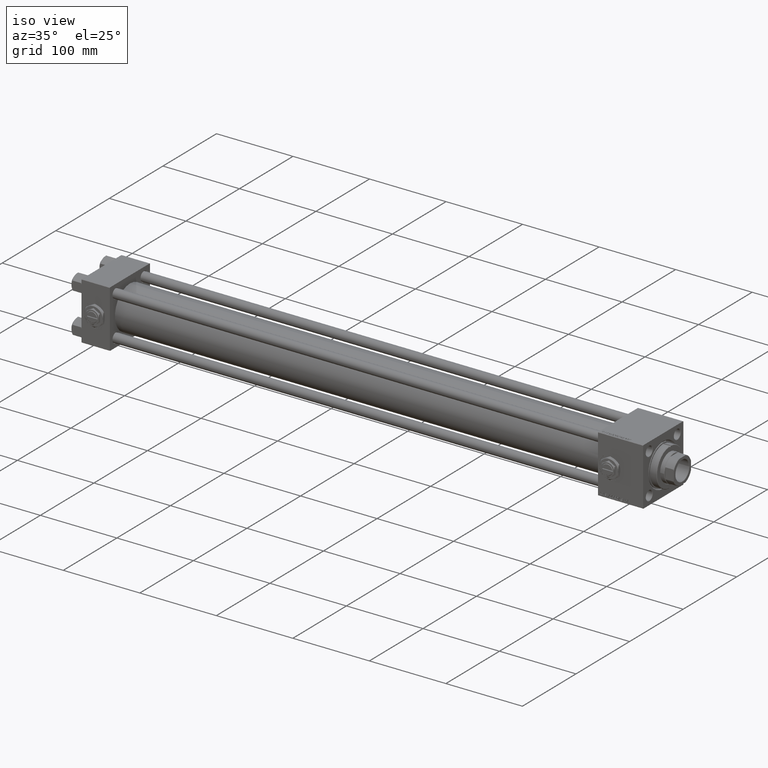
[diagram: clean part render]
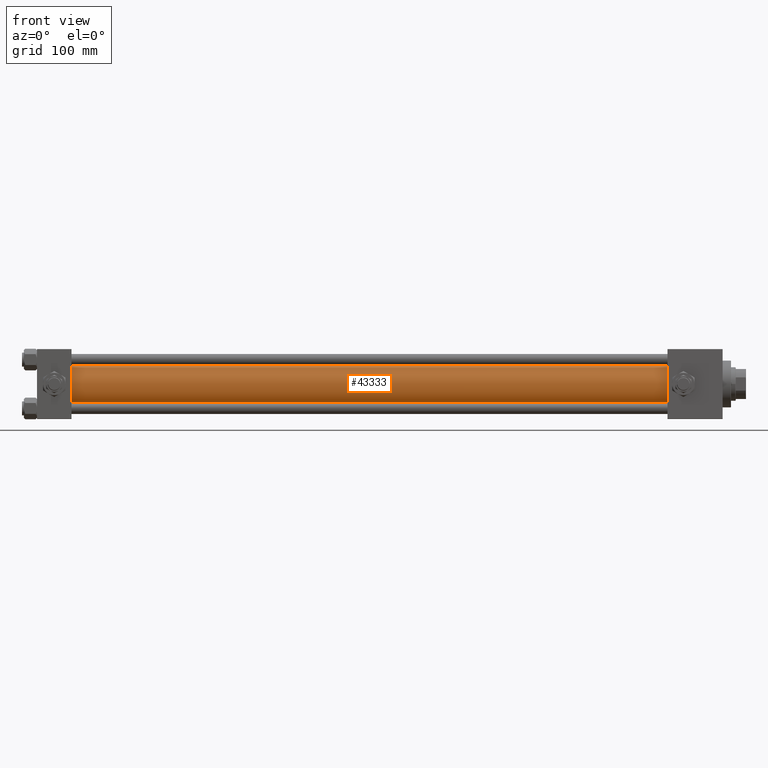
[diagram: tour spotlight — one face highlighted and labeled with its STEP entity id]
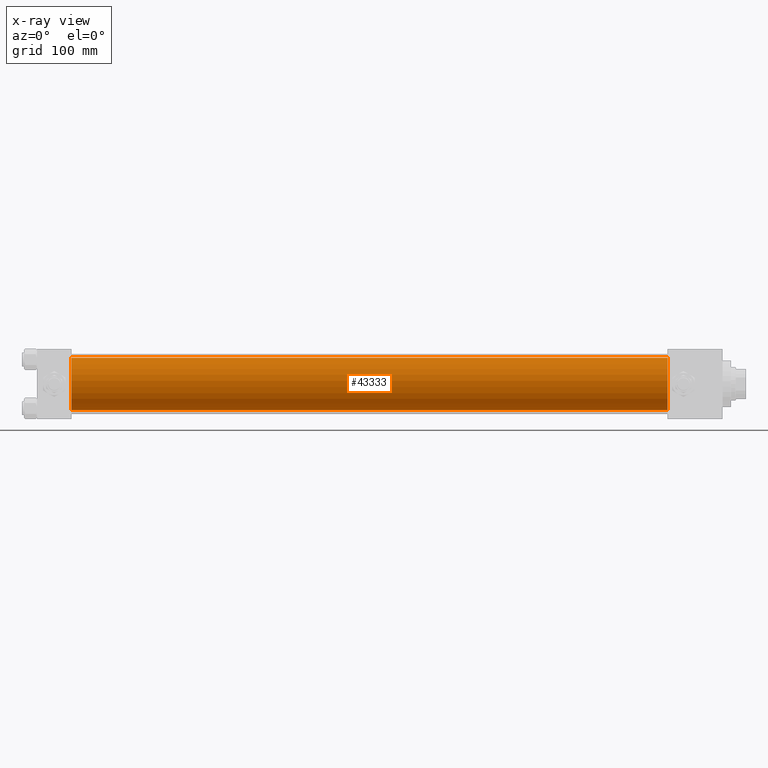
[diagram: x-ray of the same camera — body ghosted, this tour face saturated]
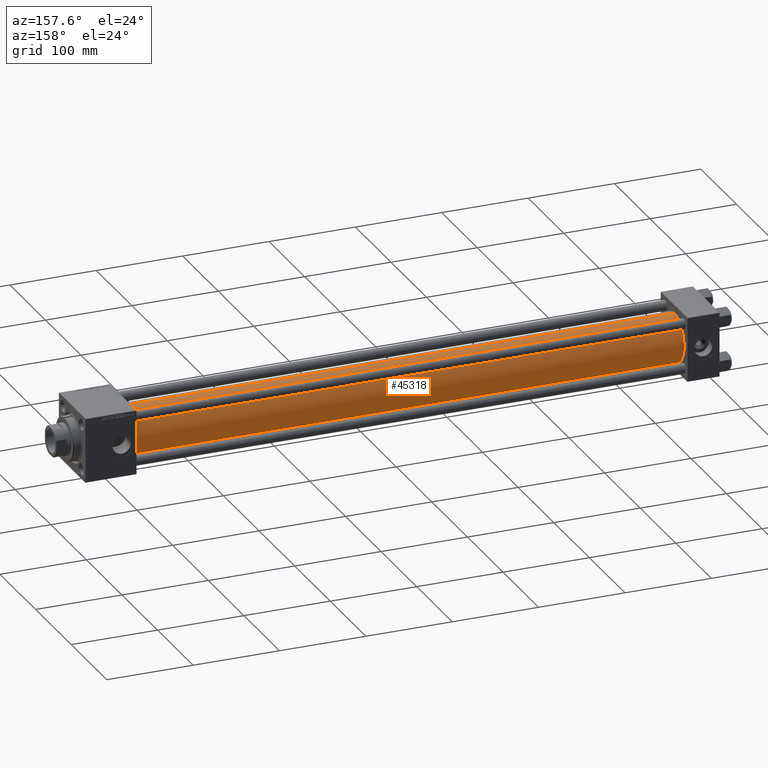
[diagram: tour spotlight — one face highlighted and labeled with its STEP entity id]
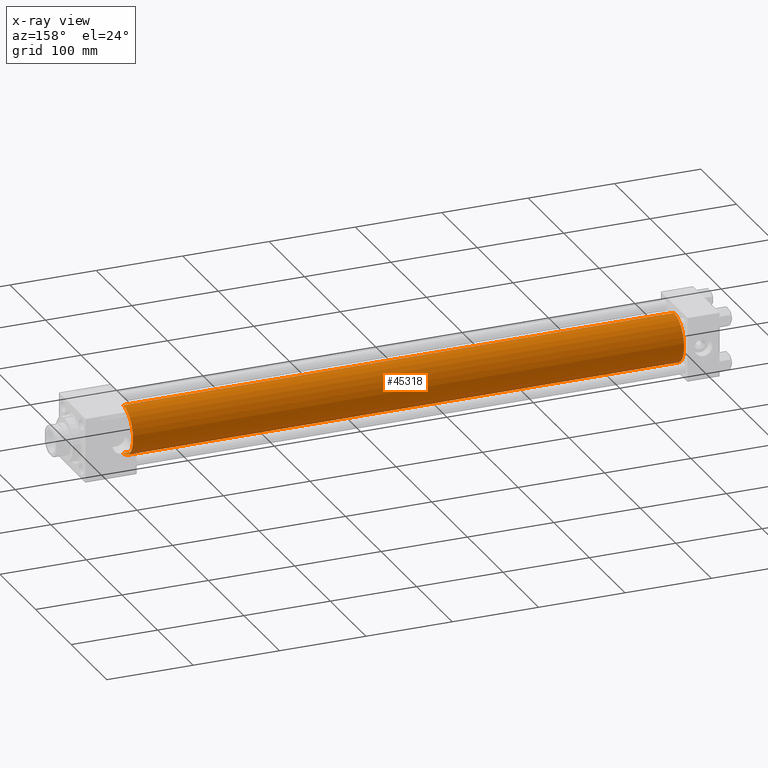
[diagram: x-ray of the same camera — body ghosted, this tour face saturated]
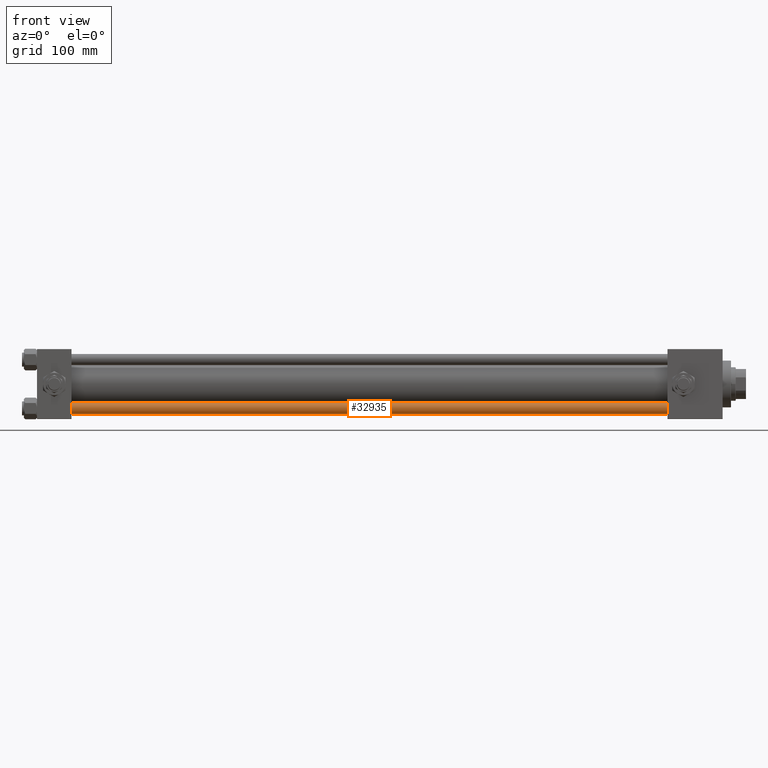
[diagram: tour spotlight — one face highlighted and labeled with its STEP entity id]
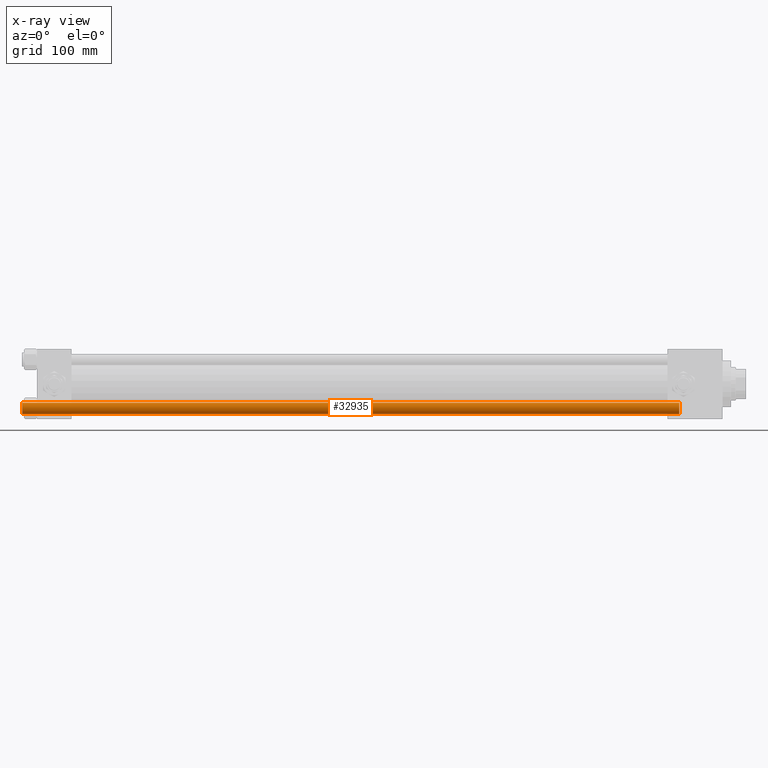
[diagram: x-ray of the same camera — body ghosted, this tour face saturated]
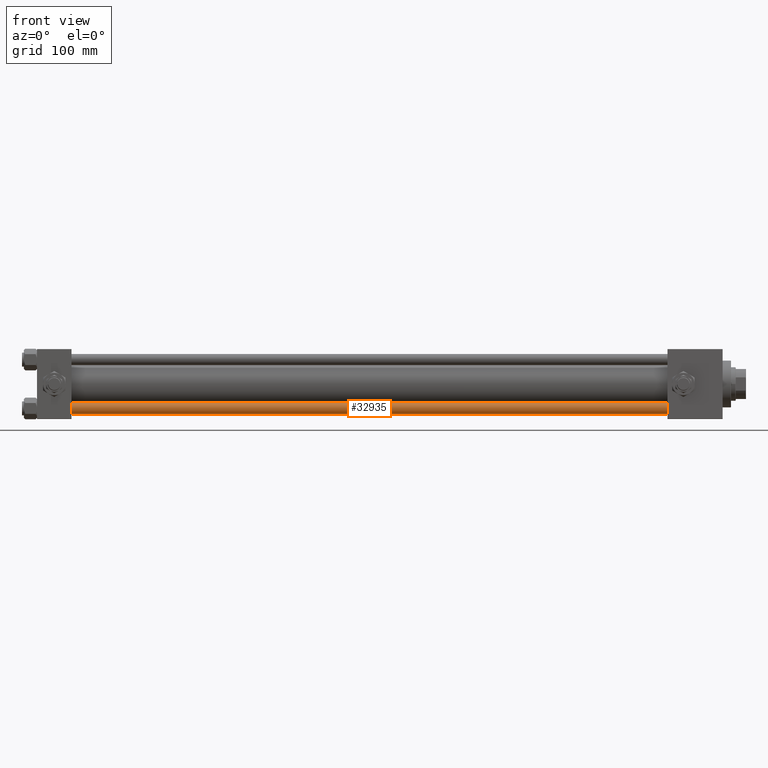
[diagram: tour spotlight — one face highlighted and labeled with its STEP entity id]
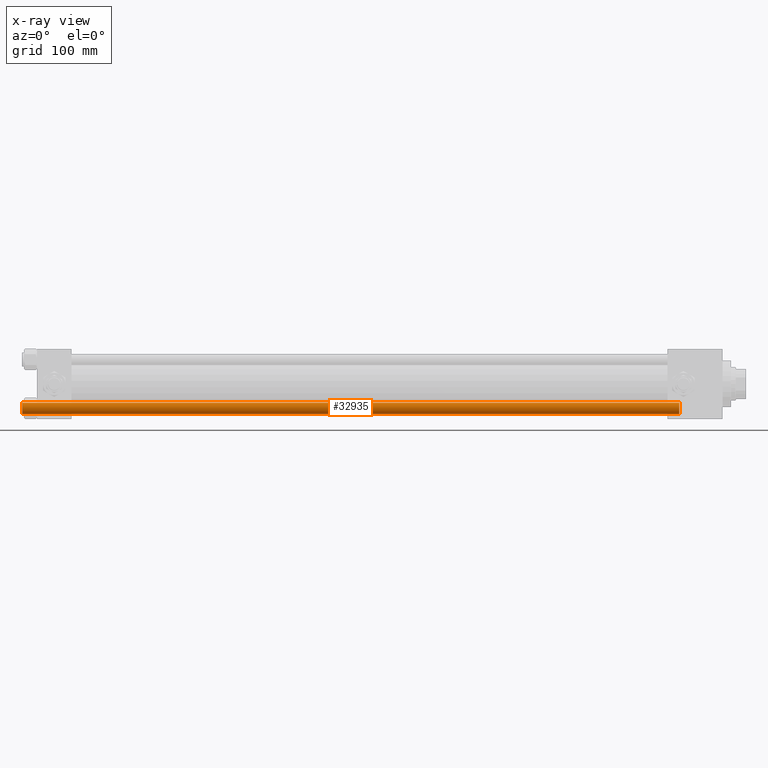
[diagram: x-ray of the same camera — body ghosted, this tour face saturated]
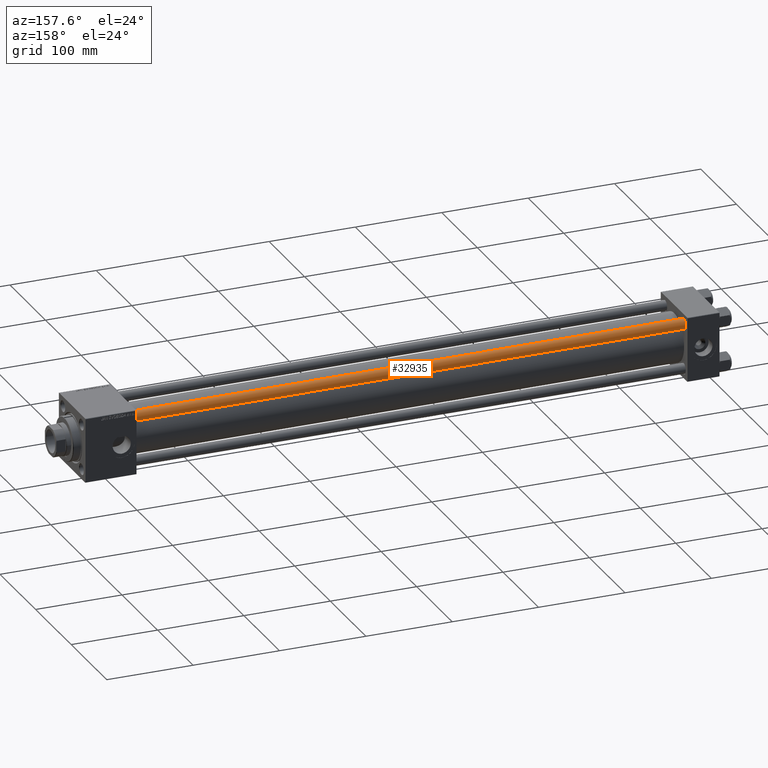
[diagram: tour spotlight — one face highlighted and labeled with its STEP entity id]
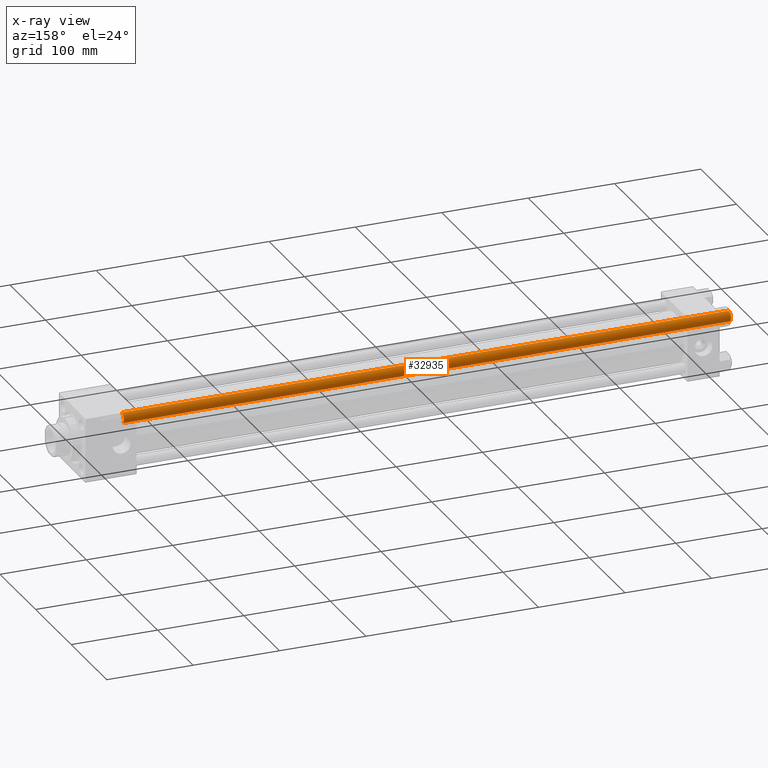
[diagram: x-ray of the same camera — body ghosted, this tour face saturated]
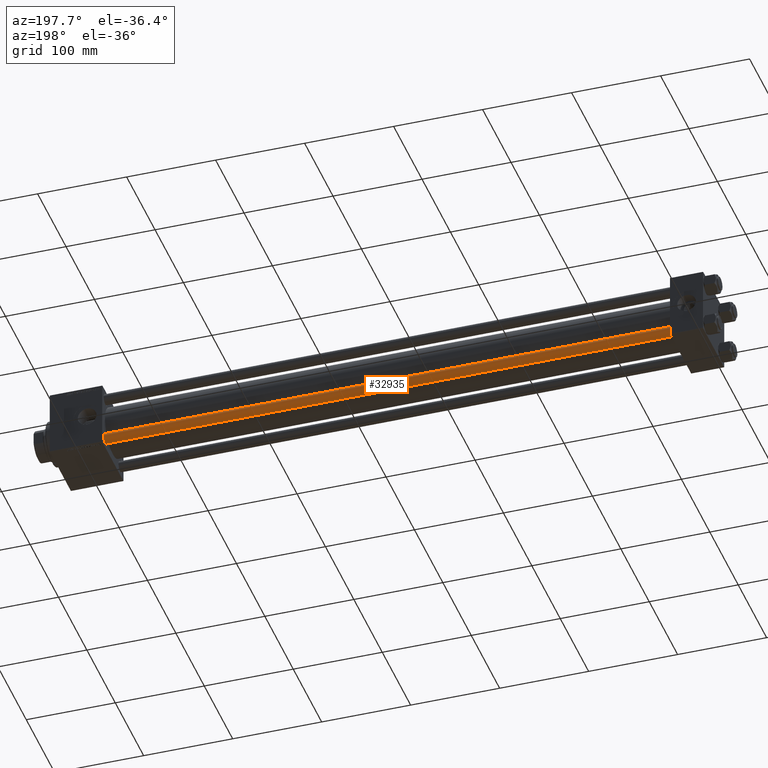
[diagram: tour spotlight — one face highlighted and labeled with its STEP entity id]
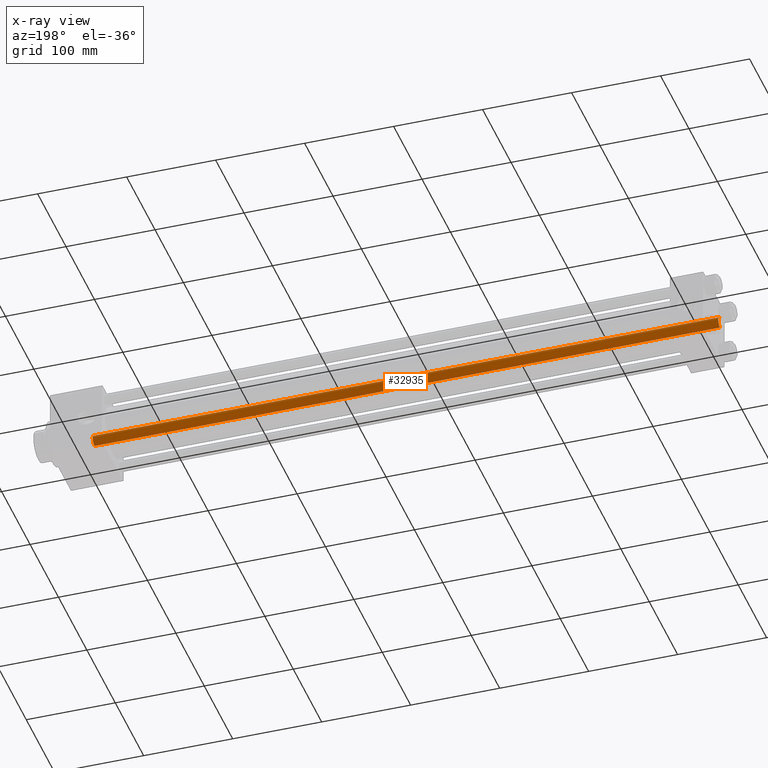
[diagram: x-ray of the same camera — body ghosted, this tour face saturated]
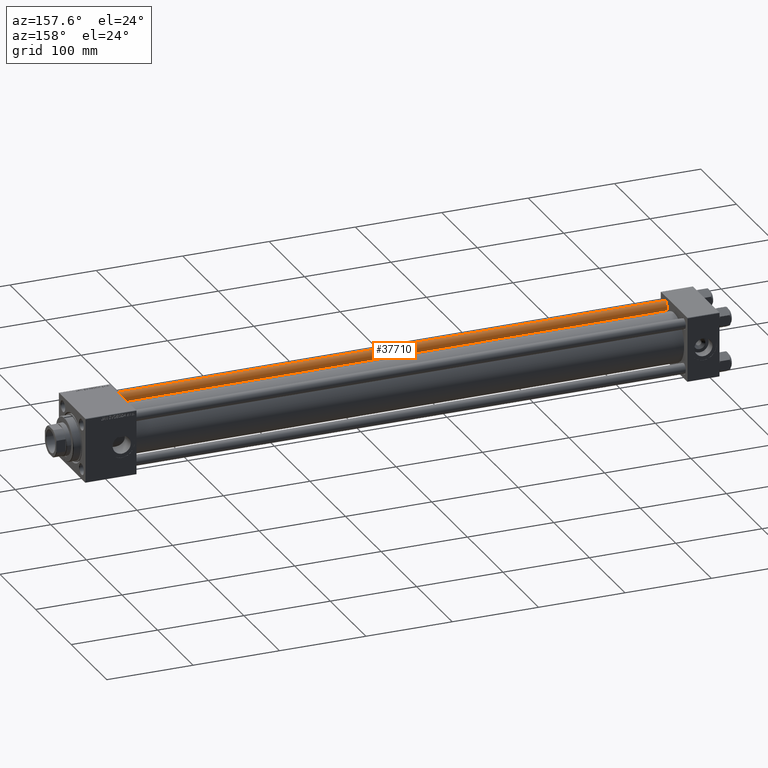
[diagram: tour spotlight — one face highlighted and labeled with its STEP entity id]
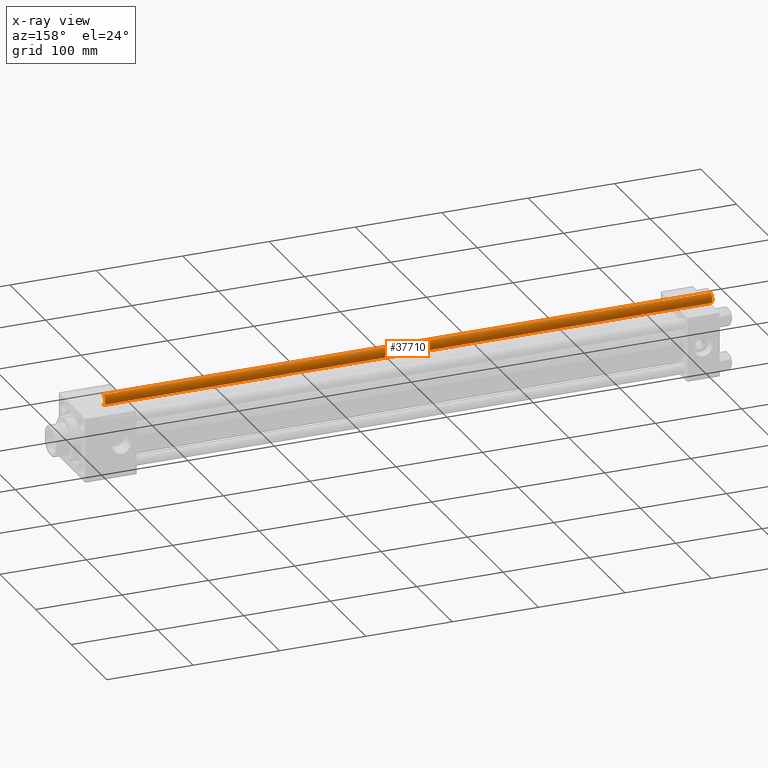
[diagram: x-ray of the same camera — body ghosted, this tour face saturated]
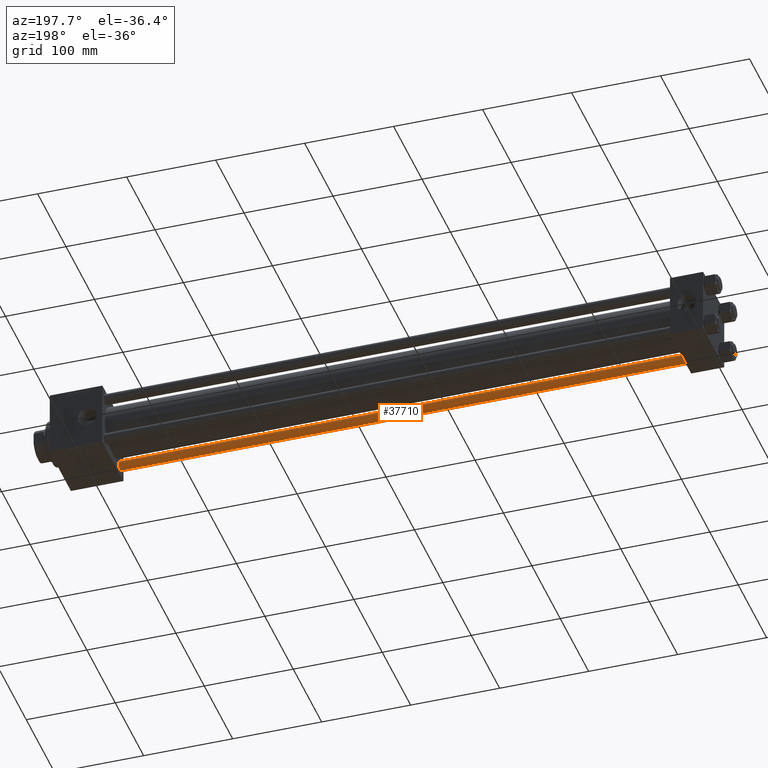
[diagram: tour spotlight — one face highlighted and labeled with its STEP entity id]
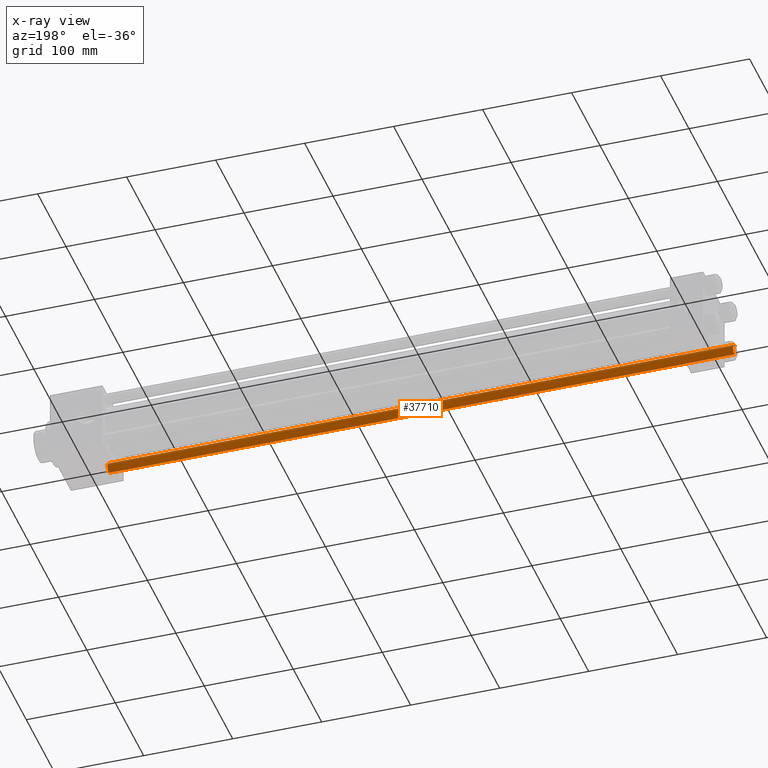
[diagram: x-ray of the same camera — body ghosted, this tour face saturated]
A machine part: a face-by-face anatomy tour. The part has 1255 B-rep faces; the first image is the clean iso view, then the 8 largest visible faces are spotlighted one at a time (largest first), each with its STEP entity span.

Face 1 — front view, entity #43333. An x-ray twin of the same camera follows (body ghosted, this face saturated) — the face is partly hidden behind the body. In plain terms, the highlighted cylindrical surface (edge-blend (fillet) strip) has radius 28 mm, axis along (-1, -0, -0).
Definition (entity closure, byte-faithful):
#49 = FACE_OUTER_BOUND ( 'NONE', #36151, .T. ) ;
#678 = VERTEX_POINT ( 'NONE', #44921 ) ;
#1684 = ORIENTED_EDGE ( 'NONE', *, *, #40015, .T. ) ;
#1927 = CARTESIAN_POINT ( 'NONE',  ( 37.00000000000003553, 8.269258236473784371E-16, -28.00000000000000000 ) ) ;
#3848 = AXIS2_PLACEMENT_3D ( 'NONE', #4518, #4265, #37146 ) ;
#4265 = DIRECTION ( 'NONE',  ( -1.000000000000000000, -0.000000000000000000, -0.000000000000000000 ) ) ;
#4518 = CARTESIAN_POINT ( 'NONE',  ( 675.0000000000000000, -2.602085213965210642E-15, 0.000000000000000000 ) ) ;
#6770 = ORIENTED_EDGE ( 'NONE', *, *, #7185, .F. ) ;
#7185 = EDGE_CURVE ( 'NONE', #678, #40507, #47597, .T. ) ;
#8121 = CARTESIAN_POINT ( 'NONE',  ( 675.0000000000000000, -2.602085213965210642E-15, 28.00000000000000000 ) ) ;
#9069 = AXIS2_PLACEMENT_3D ( 'NONE', #27326, #43496, #23347 ) ;
#9383 = EDGE_CURVE ( 'NONE', #50898, #678, #20864, .T. ) ;
#11008 = DIRECTION ( 'NONE',  ( -1.000000000000000000, -0.000000000000000000, -0.000000000000000000 ) ) ;
#11662 = EDGE_CURVE ( 'NONE', #33111, #40507, #52256, .T. ) ;
#16650 = CARTESIAN_POINT ( 'NONE',  ( 675.0000000000000000, -2.602085213965210642E-15, 0.000000000000000000 ) ) ;
#19510 = LINE ( 'NONE', #8121, #36121 ) ;
#19763 = DIRECTION ( 'NONE',  ( -1.000000000000000000, -0.000000000000000000, -0.000000000000000000 ) ) ;
#20864 = CIRCLE ( 'NONE', #31857, 28.00000000000000000 ) ;
#21195 = CARTESIAN_POINT ( 'NONE',  ( 675.0000000000000000, -2.602085213965210642E-15, 28.00000000000000000 ) ) ;
#22452 = VECTOR ( 'NONE', #11008, 1000.000000000000000 ) ;
#23014 = CARTESIAN_POINT ( 'NONE',  ( 37.00000000000003553, -2.602085213965210642E-15, 28.00000000000000000 ) ) ;
#23347 = DIRECTION ( 'NONE',  ( 0.000000000000000000, 0.000000000000000000, 1.000000000000000000 ) ) ;
#25195 = CYLINDRICAL_SURFACE ( 'NONE', #3848, 28.00000000000000000 ) ;
#27326 = CARTESIAN_POINT ( 'NONE',  ( 37.00000000000003553, -2.602085213965210642E-15, 0.000000000000000000 ) ) ;
#31857 = AXIS2_PLACEMENT_3D ( 'NONE', #16650, #40785, #38884 ) ;
#33111 = VERTEX_POINT ( 'NONE', #23014 ) ;
#33621 = ORIENTED_EDGE ( 'NONE', *, *, #11662, .T. ) ;
#35152 = CARTESIAN_POINT ( 'NONE',  ( 675.0000000000000000, 8.269258236473784371E-16, -28.00000000000000000 ) ) ;
#36121 = VECTOR ( 'NONE', #19763, 1000.000000000000000 ) ;
#36151 = EDGE_LOOP ( 'NONE', ( #6770, #52405, #1684, #33621 ) ) ;
#37146 = DIRECTION ( 'NONE',  ( 0.000000000000000000, 0.000000000000000000, 1.000000000000000000 ) ) ;
#38884 = DIRECTION ( 'NONE',  ( 0.000000000000000000, 0.000000000000000000, -1.000000000000000000 ) ) ;
#40015 = EDGE_CURVE ( 'NONE', #50898, #33111, #19510, .T. ) ;
#40507 = VERTEX_POINT ( 'NONE', #1927 ) ;
#40785 = DIRECTION ( 'NONE',  ( 1.000000000000000000, 0.000000000000000000, 0.000000000000000000 ) ) ;
#43333 = ADVANCED_FACE ( 'NONE', ( #49 ), #25195, .T. ) ;
#43496 = DIRECTION ( 'NONE',  ( 1.000000000000000000, -0.000000000000000000, 0.000000000000000000 ) ) ;
#44921 = CARTESIAN_POINT ( 'NONE',  ( 675.0000000000000000, 8.269258236473784371E-16, -28.00000000000000000 ) ) ;
#47597 = LINE ( 'NONE', #35152, #22452 ) ;
#50898 = VERTEX_POINT ( 'NONE', #21195 ) ;
#52256 = CIRCLE ( 'NONE', #9069, 28.00000000000000000 ) ;
#52405 = ORIENTED_EDGE ( 'NONE', *, *, #9383, .F. ) ;

Face 2 — auxiliary view, entity #45318. An x-ray twin of the same camera follows (body ghosted, this face saturated) — the face is partly hidden behind the body. In plain terms, the highlighted cylindrical surface (edge-blend (fillet) strip) has radius 28 mm, axis along (-1, -0, -0).
Definition (entity closure, byte-faithful):
#631 = ORIENTED_EDGE ( 'NONE', *, *, #21662, .T. ) ;
#678 = VERTEX_POINT ( 'NONE', #44921 ) ;
#1927 = CARTESIAN_POINT ( 'NONE',  ( 37.00000000000003553, 8.269258236473784371E-16, -28.00000000000000000 ) ) ;
#7185 = EDGE_CURVE ( 'NONE', #678, #40507, #47597, .T. ) ;
#7305 = CARTESIAN_POINT ( 'NONE',  ( 37.00000000000003553, -2.602085213965210642E-15, 0.000000000000000000 ) ) ;
#8121 = CARTESIAN_POINT ( 'NONE',  ( 675.0000000000000000, -2.602085213965210642E-15, 28.00000000000000000 ) ) ;
#8168 = CARTESIAN_POINT ( 'NONE',  ( 675.0000000000000000, -2.602085213965210642E-15, 0.000000000000000000 ) ) ;
#10293 = CIRCLE ( 'NONE', #30626, 28.00000000000000000 ) ;
#10510 = CARTESIAN_POINT ( 'NONE',  ( 675.0000000000000000, -2.602085213965210642E-15, 0.000000000000000000 ) ) ;
#11008 = DIRECTION ( 'NONE',  ( -1.000000000000000000, -0.000000000000000000, -0.000000000000000000 ) ) ;
#11406 = ORIENTED_EDGE ( 'NONE', *, *, #40015, .F. ) ;
#12925 = DIRECTION ( 'NONE',  ( 0.000000000000000000, 0.000000000000000000, -1.000000000000000000 ) ) ;
#19485 = DIRECTION ( 'NONE',  ( 1.000000000000000000, -0.000000000000000000, 0.000000000000000000 ) ) ;
#19510 = LINE ( 'NONE', #8121, #36121 ) ;
#19763 = DIRECTION ( 'NONE',  ( -1.000000000000000000, -0.000000000000000000, -0.000000000000000000 ) ) ;
#21195 = CARTESIAN_POINT ( 'NONE',  ( 675.0000000000000000, -2.602085213965210642E-15, 28.00000000000000000 ) ) ;
#21662 = EDGE_CURVE ( 'NONE', #40507, #33111, #10293, .T. ) ;
#22452 = VECTOR ( 'NONE', #11008, 1000.000000000000000 ) ;
#23014 = CARTESIAN_POINT ( 'NONE',  ( 37.00000000000003553, -2.602085213965210642E-15, 28.00000000000000000 ) ) ;
#29459 = AXIS2_PLACEMENT_3D ( 'NONE', #8168, #36536, #12925 ) ;
#30626 = AXIS2_PLACEMENT_3D ( 'NONE', #7305, #19485, #44679 ) ;
#33111 = VERTEX_POINT ( 'NONE', #23014 ) ;
#34418 = AXIS2_PLACEMENT_3D ( 'NONE', #10510, #38127, #41842 ) ;
#35152 = CARTESIAN_POINT ( 'NONE',  ( 675.0000000000000000, 8.269258236473784371E-16, -28.00000000000000000 ) ) ;
#36121 = VECTOR ( 'NONE', #19763, 1000.000000000000000 ) ;
#36536 = DIRECTION ( 'NONE',  ( 1.000000000000000000, 0.000000000000000000, 0.000000000000000000 ) ) ;
#38127 = DIRECTION ( 'NONE',  ( -1.000000000000000000, -0.000000000000000000, -0.000000000000000000 ) ) ;
#40015 = EDGE_CURVE ( 'NONE', #50898, #33111, #19510, .T. ) ;
#40507 = VERTEX_POINT ( 'NONE', #1927 ) ;
#41842 = DIRECTION ( 'NONE',  ( 0.000000000000000000, 0.000000000000000000, 1.000000000000000000 ) ) ;
#42357 = FACE_OUTER_BOUND ( 'NONE', #48947, .T. ) ;
#44679 = DIRECTION ( 'NONE',  ( 0.000000000000000000, 0.000000000000000000, 1.000000000000000000 ) ) ;
#44921 = CARTESIAN_POINT ( 'NONE',  ( 675.0000000000000000, 8.269258236473784371E-16, -28.00000000000000000 ) ) ;
#45318 = ADVANCED_FACE ( 'NONE', ( #42357 ), #50566, .T. ) ;
#47597 = LINE ( 'NONE', #35152, #22452 ) ;
#48061 = CIRCLE ( 'NONE', #29459, 28.00000000000000000 ) ;
#48947 = EDGE_LOOP ( 'NONE', ( #49527, #49221, #631, #11406 ) ) ;
#49221 = ORIENTED_EDGE ( 'NONE', *, *, #7185, .T. ) ;
#49527 = ORIENTED_EDGE ( 'NONE', *, *, #52154, .F. ) ;
#50566 = CYLINDRICAL_SURFACE ( 'NONE', #34418, 28.00000000000000000 ) ;
#50898 = VERTEX_POINT ( 'NONE', #21195 ) ;
#52154 = EDGE_CURVE ( 'NONE', #678, #50898, #48061, .T. ) ;

Face 3 — front view, entity #32935. An x-ray twin of the same camera follows (body ghosted, this face saturated) — the face is partly hidden behind the body. In plain terms, the highlighted cylindrical surface (edge-blend (fillet) strip) has radius 6 mm, axis along (1, 0, -0).
Definition (entity closure, byte-faithful):
#445 = AXIS2_PLACEMENT_3D ( 'NONE', #8225, #49053, #24384 ) ;
#544 = FACE_OUTER_BOUND ( 'NONE', #50151, .T. ) ;
#758 = EDGE_CURVE ( 'NONE', #23233, #26181, #7135, .T. ) ;
#1857 = CARTESIAN_POINT ( 'NONE',  ( -6.000000000000000888, 0.000000000000000000, 704.0000000000000000 ) ) ;
#3129 = AXIS2_PLACEMENT_3D ( 'NONE', #45133, #49118, #8548 ) ;
#5751 = EDGE_CURVE ( 'NONE', #47365, #23233, #28094, .T. ) ;
#6604 = LINE ( 'NONE', #1857, #32880 ) ;
#7135 = CIRCLE ( 'NONE', #26579, 6.000000000000000888 ) ;
#8225 = CARTESIAN_POINT ( 'NONE',  ( 0.000000000000000000, 0.000000000000000000, 704.0000000000000000 ) ) ;
#8415 = CARTESIAN_POINT ( 'NONE',  ( -6.000000000000000888, 0.000000000000000000, 703.5000000000000000 ) ) ;
#8548 = DIRECTION ( 'NONE',  ( 1.000000000000000000, 0.000000000000000000, 0.000000000000000000 ) ) ;
#8739 = CYLINDRICAL_SURFACE ( 'NONE', #445, 6.000000000000000888 ) ;
#9895 = CARTESIAN_POINT ( 'NONE',  ( 0.000000000000000000, 0.000000000000000000, 0.4999999999998339106 ) ) ;
#10667 = DIRECTION ( 'NONE',  ( 1.000000000000000000, 0.000000000000000000, 0.000000000000000000 ) ) ;
#11460 = EDGE_CURVE ( 'NONE', #15531, #47365, #43772, .T. ) ;
#11759 = CARTESIAN_POINT ( 'NONE',  ( 6.000000000000000888, 7.347880794884120722E-16, 703.5000000000000000 ) ) ;
#13815 = EDGE_CURVE ( 'NONE', #15531, #26181, #6604, .T. ) ;
#15531 = VERTEX_POINT ( 'NONE', #8415 ) ;
#16532 = ORIENTED_EDGE ( 'NONE', *, *, #5751, .T. ) ;
#21339 = ORIENTED_EDGE ( 'NONE', *, *, #758, .T. ) ;
#23233 = VERTEX_POINT ( 'NONE', #47168 ) ;
#24384 = DIRECTION ( 'NONE',  ( -1.000000000000000000, 0.000000000000000000, 0.000000000000000000 ) ) ;
#26181 = VERTEX_POINT ( 'NONE', #49496 ) ;
#26579 = AXIS2_PLACEMENT_3D ( 'NONE', #9895, #50711, #10667 ) ;
#28094 = LINE ( 'NONE', #48768, #35106 ) ;
#28628 = DIRECTION ( 'NONE',  ( -0.000000000000000000, -0.000000000000000000, -1.000000000000000000 ) ) ;
#32880 = VECTOR ( 'NONE', #33955, 1000.000000000000000 ) ;
#32935 = ADVANCED_FACE ( 'NONE', ( #544 ), #8739, .T. ) ;
#33955 = DIRECTION ( 'NONE',  ( -0.000000000000000000, -0.000000000000000000, -1.000000000000000000 ) ) ;
#35106 = VECTOR ( 'NONE', #28628, 1000.000000000000000 ) ;
#38765 = ORIENTED_EDGE ( 'NONE', *, *, #11460, .T. ) ;
#43671 = ORIENTED_EDGE ( 'NONE', *, *, #13815, .F. ) ;
#43772 = CIRCLE ( 'NONE', #3129, 6.000000000000000888 ) ;
#45133 = CARTESIAN_POINT ( 'NONE',  ( 0.000000000000000000, 0.000000000000000000, 703.5000000000000000 ) ) ;
#47168 = CARTESIAN_POINT ( 'NONE',  ( 6.000000000000000888, 7.347880794884120722E-16, 0.4999999999998339106 ) ) ;
#47365 = VERTEX_POINT ( 'NONE', #11759 ) ;
#48768 = CARTESIAN_POINT ( 'NONE',  ( 6.000000000000000888, 7.347880794884120722E-16, 704.0000000000000000 ) ) ;
#49053 = DIRECTION ( 'NONE',  ( -0.000000000000000000, -0.000000000000000000, -1.000000000000000000 ) ) ;
#49118 = DIRECTION ( 'NONE',  ( 0.000000000000000000, 0.000000000000000000, -1.000000000000000000 ) ) ;
#49496 = CARTESIAN_POINT ( 'NONE',  ( -6.000000000000000888, 0.000000000000000000, 0.4999999999998339106 ) ) ;
#50151 = EDGE_LOOP ( 'NONE', ( #38765, #16532, #21339, #43671 ) ) ;
#50711 = DIRECTION ( 'NONE',  ( -0.000000000000000000, -0.000000000000000000, 1.000000000000000000 ) ) ;

Face 4 — front view, entity #32935. An x-ray twin of the same camera follows (body ghosted, this face saturated) — the face is partly hidden behind the body. In plain terms, the highlighted cylindrical surface (edge-blend (fillet) strip) has radius 6 mm, axis along (-1, -0, -0).
Definition (entity closure, byte-faithful):
#445 = AXIS2_PLACEMENT_3D ( 'NONE', #8225, #49053, #24384 ) ;
#544 = FACE_OUTER_BOUND ( 'NONE', #50151, .T. ) ;
#758 = EDGE_CURVE ( 'NONE', #23233, #26181, #7135, .T. ) ;
#1857 = CARTESIAN_POINT ( 'NONE',  ( -6.000000000000000888, 0.000000000000000000, 704.0000000000000000 ) ) ;
#3129 = AXIS2_PLACEMENT_3D ( 'NONE', #45133, #49118, #8548 ) ;
#5751 = EDGE_CURVE ( 'NONE', #47365, #23233, #28094, .T. ) ;
#6604 = LINE ( 'NONE', #1857, #32880 ) ;
#7135 = CIRCLE ( 'NONE', #26579, 6.000000000000000888 ) ;
#8225 = CARTESIAN_POINT ( 'NONE',  ( 0.000000000000000000, 0.000000000000000000, 704.0000000000000000 ) ) ;
#8415 = CARTESIAN_POINT ( 'NONE',  ( -6.000000000000000888, 0.000000000000000000, 703.5000000000000000 ) ) ;
#8548 = DIRECTION ( 'NONE',  ( 1.000000000000000000, 0.000000000000000000, 0.000000000000000000 ) ) ;
#8739 = CYLINDRICAL_SURFACE ( 'NONE', #445, 6.000000000000000888 ) ;
#9895 = CARTESIAN_POINT ( 'NONE',  ( 0.000000000000000000, 0.000000000000000000, 0.4999999999998339106 ) ) ;
#10667 = DIRECTION ( 'NONE',  ( 1.000000000000000000, 0.000000000000000000, 0.000000000000000000 ) ) ;
#11460 = EDGE_CURVE ( 'NONE', #15531, #47365, #43772, .T. ) ;
#11759 = CARTESIAN_POINT ( 'NONE',  ( 6.000000000000000888, 7.347880794884120722E-16, 703.5000000000000000 ) ) ;
#13815 = EDGE_CURVE ( 'NONE', #15531, #26181, #6604, .T. ) ;
#15531 = VERTEX_POINT ( 'NONE', #8415 ) ;
#16532 = ORIENTED_EDGE ( 'NONE', *, *, #5751, .T. ) ;
#21339 = ORIENTED_EDGE ( 'NONE', *, *, #758, .T. ) ;
#23233 = VERTEX_POINT ( 'NONE', #47168 ) ;
#24384 = DIRECTION ( 'NONE',  ( -1.000000000000000000, 0.000000000000000000, 0.000000000000000000 ) ) ;
#26181 = VERTEX_POINT ( 'NONE', #49496 ) ;
#26579 = AXIS2_PLACEMENT_3D ( 'NONE', #9895, #50711, #10667 ) ;
#28094 = LINE ( 'NONE', #48768, #35106 ) ;
#28628 = DIRECTION ( 'NONE',  ( -0.000000000000000000, -0.000000000000000000, -1.000000000000000000 ) ) ;
#32880 = VECTOR ( 'NONE', #33955, 1000.000000000000000 ) ;
#32935 = ADVANCED_FACE ( 'NONE', ( #544 ), #8739, .T. ) ;
#33955 = DIRECTION ( 'NONE',  ( -0.000000000000000000, -0.000000000000000000, -1.000000000000000000 ) ) ;
#35106 = VECTOR ( 'NONE', #28628, 1000.000000000000000 ) ;
#38765 = ORIENTED_EDGE ( 'NONE', *, *, #11460, .T. ) ;
#43671 = ORIENTED_EDGE ( 'NONE', *, *, #13815, .F. ) ;
#43772 = CIRCLE ( 'NONE', #3129, 6.000000000000000888 ) ;
#45133 = CARTESIAN_POINT ( 'NONE',  ( 0.000000000000000000, 0.000000000000000000, 703.5000000000000000 ) ) ;
#47168 = CARTESIAN_POINT ( 'NONE',  ( 6.000000000000000888, 7.347880794884120722E-16, 0.4999999999998339106 ) ) ;
#47365 = VERTEX_POINT ( 'NONE', #11759 ) ;
#48768 = CARTESIAN_POINT ( 'NONE',  ( 6.000000000000000888, 7.347880794884120722E-16, 704.0000000000000000 ) ) ;
#49053 = DIRECTION ( 'NONE',  ( -0.000000000000000000, -0.000000000000000000, -1.000000000000000000 ) ) ;
#49118 = DIRECTION ( 'NONE',  ( 0.000000000000000000, 0.000000000000000000, -1.000000000000000000 ) ) ;
#49496 = CARTESIAN_POINT ( 'NONE',  ( -6.000000000000000888, 0.000000000000000000, 0.4999999999998339106 ) ) ;
#50151 = EDGE_LOOP ( 'NONE', ( #38765, #16532, #21339, #43671 ) ) ;
#50711 = DIRECTION ( 'NONE',  ( -0.000000000000000000, -0.000000000000000000, 1.000000000000000000 ) ) ;

Face 5 — auxiliary view, entity #32935. An x-ray twin of the same camera follows (body ghosted, this face saturated) — the face is partly hidden behind the body. In plain terms, the highlighted cylindrical surface (edge-blend (fillet) strip) has radius 6 mm, axis along (-1, 0, 0).
Definition (entity closure, byte-faithful):
#445 = AXIS2_PLACEMENT_3D ( 'NONE', #8225, #49053, #24384 ) ;
#544 = FACE_OUTER_BOUND ( 'NONE', #50151, .T. ) ;
#758 = EDGE_CURVE ( 'NONE', #23233, #26181, #7135, .T. ) ;
#1857 = CARTESIAN_POINT ( 'NONE',  ( -6.000000000000000888, 0.000000000000000000, 704.0000000000000000 ) ) ;
#3129 = AXIS2_PLACEMENT_3D ( 'NONE', #45133, #49118, #8548 ) ;
#5751 = EDGE_CURVE ( 'NONE', #47365, #23233, #28094, .T. ) ;
#6604 = LINE ( 'NONE', #1857, #32880 ) ;
#7135 = CIRCLE ( 'NONE', #26579, 6.000000000000000888 ) ;
#8225 = CARTESIAN_POINT ( 'NONE',  ( 0.000000000000000000, 0.000000000000000000, 704.0000000000000000 ) ) ;
#8415 = CARTESIAN_POINT ( 'NONE',  ( -6.000000000000000888, 0.000000000000000000, 703.5000000000000000 ) ) ;
#8548 = DIRECTION ( 'NONE',  ( 1.000000000000000000, 0.000000000000000000, 0.000000000000000000 ) ) ;
#8739 = CYLINDRICAL_SURFACE ( 'NONE', #445, 6.000000000000000888 ) ;
#9895 = CARTESIAN_POINT ( 'NONE',  ( 0.000000000000000000, 0.000000000000000000, 0.4999999999998339106 ) ) ;
#10667 = DIRECTION ( 'NONE',  ( 1.000000000000000000, 0.000000000000000000, 0.000000000000000000 ) ) ;
#11460 = EDGE_CURVE ( 'NONE', #15531, #47365, #43772, .T. ) ;
#11759 = CARTESIAN_POINT ( 'NONE',  ( 6.000000000000000888, 7.347880794884120722E-16, 703.5000000000000000 ) ) ;
#13815 = EDGE_CURVE ( 'NONE', #15531, #26181, #6604, .T. ) ;
#15531 = VERTEX_POINT ( 'NONE', #8415 ) ;
#16532 = ORIENTED_EDGE ( 'NONE', *, *, #5751, .T. ) ;
#21339 = ORIENTED_EDGE ( 'NONE', *, *, #758, .T. ) ;
#23233 = VERTEX_POINT ( 'NONE', #47168 ) ;
#24384 = DIRECTION ( 'NONE',  ( -1.000000000000000000, 0.000000000000000000, 0.000000000000000000 ) ) ;
#26181 = VERTEX_POINT ( 'NONE', #49496 ) ;
#26579 = AXIS2_PLACEMENT_3D ( 'NONE', #9895, #50711, #10667 ) ;
#28094 = LINE ( 'NONE', #48768, #35106 ) ;
#28628 = DIRECTION ( 'NONE',  ( -0.000000000000000000, -0.000000000000000000, -1.000000000000000000 ) ) ;
#32880 = VECTOR ( 'NONE', #33955, 1000.000000000000000 ) ;
#32935 = ADVANCED_FACE ( 'NONE', ( #544 ), #8739, .T. ) ;
#33955 = DIRECTION ( 'NONE',  ( -0.000000000000000000, -0.000000000000000000, -1.000000000000000000 ) ) ;
#35106 = VECTOR ( 'NONE', #28628, 1000.000000000000000 ) ;
#38765 = ORIENTED_EDGE ( 'NONE', *, *, #11460, .T. ) ;
#43671 = ORIENTED_EDGE ( 'NONE', *, *, #13815, .F. ) ;
#43772 = CIRCLE ( 'NONE', #3129, 6.000000000000000888 ) ;
#45133 = CARTESIAN_POINT ( 'NONE',  ( 0.000000000000000000, 0.000000000000000000, 703.5000000000000000 ) ) ;
#47168 = CARTESIAN_POINT ( 'NONE',  ( 6.000000000000000888, 7.347880794884120722E-16, 0.4999999999998339106 ) ) ;
#47365 = VERTEX_POINT ( 'NONE', #11759 ) ;
#48768 = CARTESIAN_POINT ( 'NONE',  ( 6.000000000000000888, 7.347880794884120722E-16, 704.0000000000000000 ) ) ;
#49053 = DIRECTION ( 'NONE',  ( -0.000000000000000000, -0.000000000000000000, -1.000000000000000000 ) ) ;
#49118 = DIRECTION ( 'NONE',  ( 0.000000000000000000, 0.000000000000000000, -1.000000000000000000 ) ) ;
#49496 = CARTESIAN_POINT ( 'NONE',  ( -6.000000000000000888, 0.000000000000000000, 0.4999999999998339106 ) ) ;
#50151 = EDGE_LOOP ( 'NONE', ( #38765, #16532, #21339, #43671 ) ) ;
#50711 = DIRECTION ( 'NONE',  ( -0.000000000000000000, -0.000000000000000000, 1.000000000000000000 ) ) ;

Face 6 — auxiliary view, entity #32935. An x-ray twin of the same camera follows (body ghosted, this face saturated) — the face is partly hidden behind the body. In plain terms, the highlighted cylindrical surface (edge-blend (fillet) strip) has radius 6 mm, axis along (1, -0, 0).
Definition (entity closure, byte-faithful):
#445 = AXIS2_PLACEMENT_3D ( 'NONE', #8225, #49053, #24384 ) ;
#544 = FACE_OUTER_BOUND ( 'NONE', #50151, .T. ) ;
#758 = EDGE_CURVE ( 'NONE', #23233, #26181, #7135, .T. ) ;
#1857 = CARTESIAN_POINT ( 'NONE',  ( -6.000000000000000888, 0.000000000000000000, 704.0000000000000000 ) ) ;
#3129 = AXIS2_PLACEMENT_3D ( 'NONE', #45133, #49118, #8548 ) ;
#5751 = EDGE_CURVE ( 'NONE', #47365, #23233, #28094, .T. ) ;
#6604 = LINE ( 'NONE', #1857, #32880 ) ;
#7135 = CIRCLE ( 'NONE', #26579, 6.000000000000000888 ) ;
#8225 = CARTESIAN_POINT ( 'NONE',  ( 0.000000000000000000, 0.000000000000000000, 704.0000000000000000 ) ) ;
#8415 = CARTESIAN_POINT ( 'NONE',  ( -6.000000000000000888, 0.000000000000000000, 703.5000000000000000 ) ) ;
#8548 = DIRECTION ( 'NONE',  ( 1.000000000000000000, 0.000000000000000000, 0.000000000000000000 ) ) ;
#8739 = CYLINDRICAL_SURFACE ( 'NONE', #445, 6.000000000000000888 ) ;
#9895 = CARTESIAN_POINT ( 'NONE',  ( 0.000000000000000000, 0.000000000000000000, 0.4999999999998339106 ) ) ;
#10667 = DIRECTION ( 'NONE',  ( 1.000000000000000000, 0.000000000000000000, 0.000000000000000000 ) ) ;
#11460 = EDGE_CURVE ( 'NONE', #15531, #47365, #43772, .T. ) ;
#11759 = CARTESIAN_POINT ( 'NONE',  ( 6.000000000000000888, 7.347880794884120722E-16, 703.5000000000000000 ) ) ;
#13815 = EDGE_CURVE ( 'NONE', #15531, #26181, #6604, .T. ) ;
#15531 = VERTEX_POINT ( 'NONE', #8415 ) ;
#16532 = ORIENTED_EDGE ( 'NONE', *, *, #5751, .T. ) ;
#21339 = ORIENTED_EDGE ( 'NONE', *, *, #758, .T. ) ;
#23233 = VERTEX_POINT ( 'NONE', #47168 ) ;
#24384 = DIRECTION ( 'NONE',  ( -1.000000000000000000, 0.000000000000000000, 0.000000000000000000 ) ) ;
#26181 = VERTEX_POINT ( 'NONE', #49496 ) ;
#26579 = AXIS2_PLACEMENT_3D ( 'NONE', #9895, #50711, #10667 ) ;
#28094 = LINE ( 'NONE', #48768, #35106 ) ;
#28628 = DIRECTION ( 'NONE',  ( -0.000000000000000000, -0.000000000000000000, -1.000000000000000000 ) ) ;
#32880 = VECTOR ( 'NONE', #33955, 1000.000000000000000 ) ;
#32935 = ADVANCED_FACE ( 'NONE', ( #544 ), #8739, .T. ) ;
#33955 = DIRECTION ( 'NONE',  ( -0.000000000000000000, -0.000000000000000000, -1.000000000000000000 ) ) ;
#35106 = VECTOR ( 'NONE', #28628, 1000.000000000000000 ) ;
#38765 = ORIENTED_EDGE ( 'NONE', *, *, #11460, .T. ) ;
#43671 = ORIENTED_EDGE ( 'NONE', *, *, #13815, .F. ) ;
#43772 = CIRCLE ( 'NONE', #3129, 6.000000000000000888 ) ;
#45133 = CARTESIAN_POINT ( 'NONE',  ( 0.000000000000000000, 0.000000000000000000, 703.5000000000000000 ) ) ;
#47168 = CARTESIAN_POINT ( 'NONE',  ( 6.000000000000000888, 7.347880794884120722E-16, 0.4999999999998339106 ) ) ;
#47365 = VERTEX_POINT ( 'NONE', #11759 ) ;
#48768 = CARTESIAN_POINT ( 'NONE',  ( 6.000000000000000888, 7.347880794884120722E-16, 704.0000000000000000 ) ) ;
#49053 = DIRECTION ( 'NONE',  ( -0.000000000000000000, -0.000000000000000000, -1.000000000000000000 ) ) ;
#49118 = DIRECTION ( 'NONE',  ( 0.000000000000000000, 0.000000000000000000, -1.000000000000000000 ) ) ;
#49496 = CARTESIAN_POINT ( 'NONE',  ( -6.000000000000000888, 0.000000000000000000, 0.4999999999998339106 ) ) ;
#50151 = EDGE_LOOP ( 'NONE', ( #38765, #16532, #21339, #43671 ) ) ;
#50711 = DIRECTION ( 'NONE',  ( -0.000000000000000000, -0.000000000000000000, 1.000000000000000000 ) ) ;

Face 7 — auxiliary view, entity #37710. An x-ray twin of the same camera follows (body ghosted, this face saturated) — the face is partly hidden behind the body. In plain terms, the highlighted cylindrical surface (edge-blend (fillet) strip) has radius 6 mm, axis along (1, 0, -0).
Definition (entity closure, byte-faithful):
#419 = CIRCLE ( 'NONE', #21549, 6.000000000000000888 ) ;
#1515 = EDGE_CURVE ( 'NONE', #26181, #23233, #419, .T. ) ;
#1715 = DIRECTION ( 'NONE',  ( 1.000000000000000000, 0.000000000000000000, 0.000000000000000000 ) ) ;
#1857 = CARTESIAN_POINT ( 'NONE',  ( -6.000000000000000888, 0.000000000000000000, 704.0000000000000000 ) ) ;
#3064 = CARTESIAN_POINT ( 'NONE',  ( 0.000000000000000000, 0.000000000000000000, 704.0000000000000000 ) ) ;
#4867 = ORIENTED_EDGE ( 'NONE', *, *, #1515, .T. ) ;
#5751 = EDGE_CURVE ( 'NONE', #47365, #23233, #28094, .T. ) ;
#6604 = LINE ( 'NONE', #1857, #32880 ) ;
#8415 = CARTESIAN_POINT ( 'NONE',  ( -6.000000000000000888, 0.000000000000000000, 703.5000000000000000 ) ) ;
#10837 = ORIENTED_EDGE ( 'NONE', *, *, #41990, .T. ) ;
#11759 = CARTESIAN_POINT ( 'NONE',  ( 6.000000000000000888, 7.347880794884120722E-16, 703.5000000000000000 ) ) ;
#12498 = CIRCLE ( 'NONE', #42138, 6.000000000000000888 ) ;
#13815 = EDGE_CURVE ( 'NONE', #15531, #26181, #6604, .T. ) ;
#15255 = DIRECTION ( 'NONE',  ( -1.000000000000000000, 0.000000000000000000, 0.000000000000000000 ) ) ;
#15531 = VERTEX_POINT ( 'NONE', #8415 ) ;
#18596 = ORIENTED_EDGE ( 'NONE', *, *, #5751, .F. ) ;
#19215 = DIRECTION ( 'NONE',  ( -0.000000000000000000, -0.000000000000000000, -1.000000000000000000 ) ) ;
#19478 = FACE_OUTER_BOUND ( 'NONE', #48323, .T. ) ;
#21549 = AXIS2_PLACEMENT_3D ( 'NONE', #45193, #25303, #1715 ) ;
#23233 = VERTEX_POINT ( 'NONE', #47168 ) ;
#25303 = DIRECTION ( 'NONE',  ( -0.000000000000000000, -0.000000000000000000, 1.000000000000000000 ) ) ;
#26099 = CARTESIAN_POINT ( 'NONE',  ( 0.000000000000000000, 0.000000000000000000, 703.5000000000000000 ) ) ;
#26181 = VERTEX_POINT ( 'NONE', #49496 ) ;
#28094 = LINE ( 'NONE', #48768, #35106 ) ;
#28628 = DIRECTION ( 'NONE',  ( -0.000000000000000000, -0.000000000000000000, -1.000000000000000000 ) ) ;
#30082 = ORIENTED_EDGE ( 'NONE', *, *, #13815, .T. ) ;
#30331 = DIRECTION ( 'NONE',  ( 0.000000000000000000, 0.000000000000000000, -1.000000000000000000 ) ) ;
#32880 = VECTOR ( 'NONE', #33955, 1000.000000000000000 ) ;
#33955 = DIRECTION ( 'NONE',  ( -0.000000000000000000, -0.000000000000000000, -1.000000000000000000 ) ) ;
#35106 = VECTOR ( 'NONE', #28628, 1000.000000000000000 ) ;
#37710 = ADVANCED_FACE ( 'NONE', ( #19478 ), #51837, .T. ) ;
#38568 = AXIS2_PLACEMENT_3D ( 'NONE', #3064, #19215, #15255 ) ;
#41990 = EDGE_CURVE ( 'NONE', #47365, #15531, #12498, .T. ) ;
#42138 = AXIS2_PLACEMENT_3D ( 'NONE', #26099, #30331, #42273 ) ;
#42273 = DIRECTION ( 'NONE',  ( 1.000000000000000000, 0.000000000000000000, 0.000000000000000000 ) ) ;
#45193 = CARTESIAN_POINT ( 'NONE',  ( 0.000000000000000000, 0.000000000000000000, 0.4999999999998339106 ) ) ;
#47168 = CARTESIAN_POINT ( 'NONE',  ( 6.000000000000000888, 7.347880794884120722E-16, 0.4999999999998339106 ) ) ;
#47365 = VERTEX_POINT ( 'NONE', #11759 ) ;
#48323 = EDGE_LOOP ( 'NONE', ( #18596, #10837, #30082, #4867 ) ) ;
#48768 = CARTESIAN_POINT ( 'NONE',  ( 6.000000000000000888, 7.347880794884120722E-16, 704.0000000000000000 ) ) ;
#49496 = CARTESIAN_POINT ( 'NONE',  ( -6.000000000000000888, 0.000000000000000000, 0.4999999999998339106 ) ) ;
#51837 = CYLINDRICAL_SURFACE ( 'NONE', #38568, 6.000000000000000888 ) ;

Face 8 — auxiliary view, entity #37710. An x-ray twin of the same camera follows (body ghosted, this face saturated) — the face is partly hidden behind the body. In plain terms, the highlighted cylindrical surface (edge-blend (fillet) strip) has radius 6 mm, axis along (-1, -0, -0).
Definition (entity closure, byte-faithful):
#419 = CIRCLE ( 'NONE', #21549, 6.000000000000000888 ) ;
#1515 = EDGE_CURVE ( 'NONE', #26181, #23233, #419, .T. ) ;
#1715 = DIRECTION ( 'NONE',  ( 1.000000000000000000, 0.000000000000000000, 0.000000000000000000 ) ) ;
#1857 = CARTESIAN_POINT ( 'NONE',  ( -6.000000000000000888, 0.000000000000000000, 704.0000000000000000 ) ) ;
#3064 = CARTESIAN_POINT ( 'NONE',  ( 0.000000000000000000, 0.000000000000000000, 704.0000000000000000 ) ) ;
#4867 = ORIENTED_EDGE ( 'NONE', *, *, #1515, .T. ) ;
#5751 = EDGE_CURVE ( 'NONE', #47365, #23233, #28094, .T. ) ;
#6604 = LINE ( 'NONE', #1857, #32880 ) ;
#8415 = CARTESIAN_POINT ( 'NONE',  ( -6.000000000000000888, 0.000000000000000000, 703.5000000000000000 ) ) ;
#10837 = ORIENTED_EDGE ( 'NONE', *, *, #41990, .T. ) ;
#11759 = CARTESIAN_POINT ( 'NONE',  ( 6.000000000000000888, 7.347880794884120722E-16, 703.5000000000000000 ) ) ;
#12498 = CIRCLE ( 'NONE', #42138, 6.000000000000000888 ) ;
#13815 = EDGE_CURVE ( 'NONE', #15531, #26181, #6604, .T. ) ;
#15255 = DIRECTION ( 'NONE',  ( -1.000000000000000000, 0.000000000000000000, 0.000000000000000000 ) ) ;
#15531 = VERTEX_POINT ( 'NONE', #8415 ) ;
#18596 = ORIENTED_EDGE ( 'NONE', *, *, #5751, .F. ) ;
#19215 = DIRECTION ( 'NONE',  ( -0.000000000000000000, -0.000000000000000000, -1.000000000000000000 ) ) ;
#19478 = FACE_OUTER_BOUND ( 'NONE', #48323, .T. ) ;
#21549 = AXIS2_PLACEMENT_3D ( 'NONE', #45193, #25303, #1715 ) ;
#23233 = VERTEX_POINT ( 'NONE', #47168 ) ;
#25303 = DIRECTION ( 'NONE',  ( -0.000000000000000000, -0.000000000000000000, 1.000000000000000000 ) ) ;
#26099 = CARTESIAN_POINT ( 'NONE',  ( 0.000000000000000000, 0.000000000000000000, 703.5000000000000000 ) ) ;
#26181 = VERTEX_POINT ( 'NONE', #49496 ) ;
#28094 = LINE ( 'NONE', #48768, #35106 ) ;
#28628 = DIRECTION ( 'NONE',  ( -0.000000000000000000, -0.000000000000000000, -1.000000000000000000 ) ) ;
#30082 = ORIENTED_EDGE ( 'NONE', *, *, #13815, .T. ) ;
#30331 = DIRECTION ( 'NONE',  ( 0.000000000000000000, 0.000000000000000000, -1.000000000000000000 ) ) ;
#32880 = VECTOR ( 'NONE', #33955, 1000.000000000000000 ) ;
#33955 = DIRECTION ( 'NONE',  ( -0.000000000000000000, -0.000000000000000000, -1.000000000000000000 ) ) ;
#35106 = VECTOR ( 'NONE', #28628, 1000.000000000000000 ) ;
#37710 = ADVANCED_FACE ( 'NONE', ( #19478 ), #51837, .T. ) ;
#38568 = AXIS2_PLACEMENT_3D ( 'NONE', #3064, #19215, #15255 ) ;
#41990 = EDGE_CURVE ( 'NONE', #47365, #15531, #12498, .T. ) ;
#42138 = AXIS2_PLACEMENT_3D ( 'NONE', #26099, #30331, #42273 ) ;
#42273 = DIRECTION ( 'NONE',  ( 1.000000000000000000, 0.000000000000000000, 0.000000000000000000 ) ) ;
#45193 = CARTESIAN_POINT ( 'NONE',  ( 0.000000000000000000, 0.000000000000000000, 0.4999999999998339106 ) ) ;
#47168 = CARTESIAN_POINT ( 'NONE',  ( 6.000000000000000888, 7.347880794884120722E-16, 0.4999999999998339106 ) ) ;
#47365 = VERTEX_POINT ( 'NONE', #11759 ) ;
#48323 = EDGE_LOOP ( 'NONE', ( #18596, #10837, #30082, #4867 ) ) ;
#48768 = CARTESIAN_POINT ( 'NONE',  ( 6.000000000000000888, 7.347880794884120722E-16, 704.0000000000000000 ) ) ;
#49496 = CARTESIAN_POINT ( 'NONE',  ( -6.000000000000000888, 0.000000000000000000, 0.4999999999998339106 ) ) ;
#51837 = CYLINDRICAL_SURFACE ( 'NONE', #38568, 6.000000000000000888 ) ;